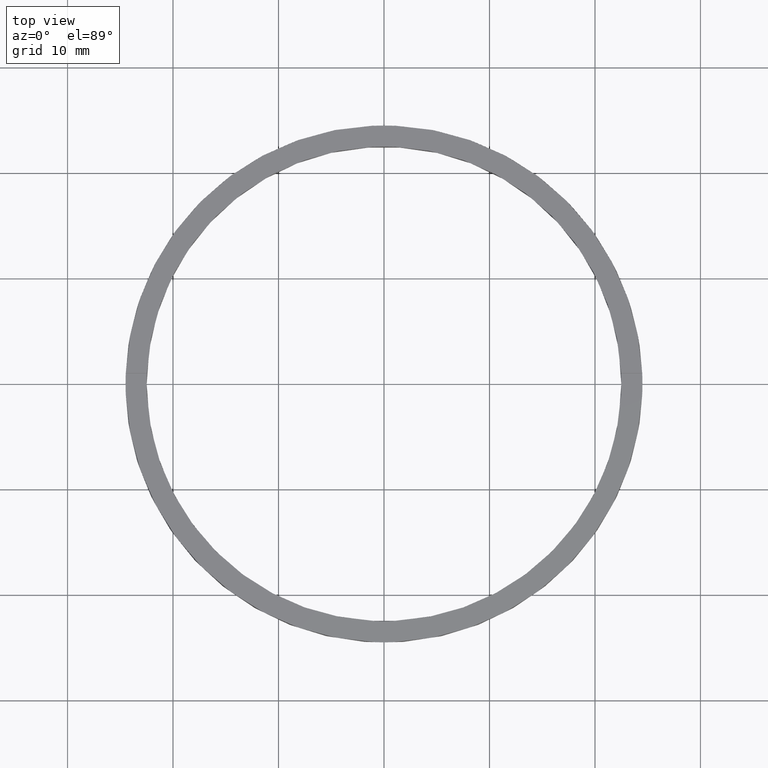
[diagram: clean part render]
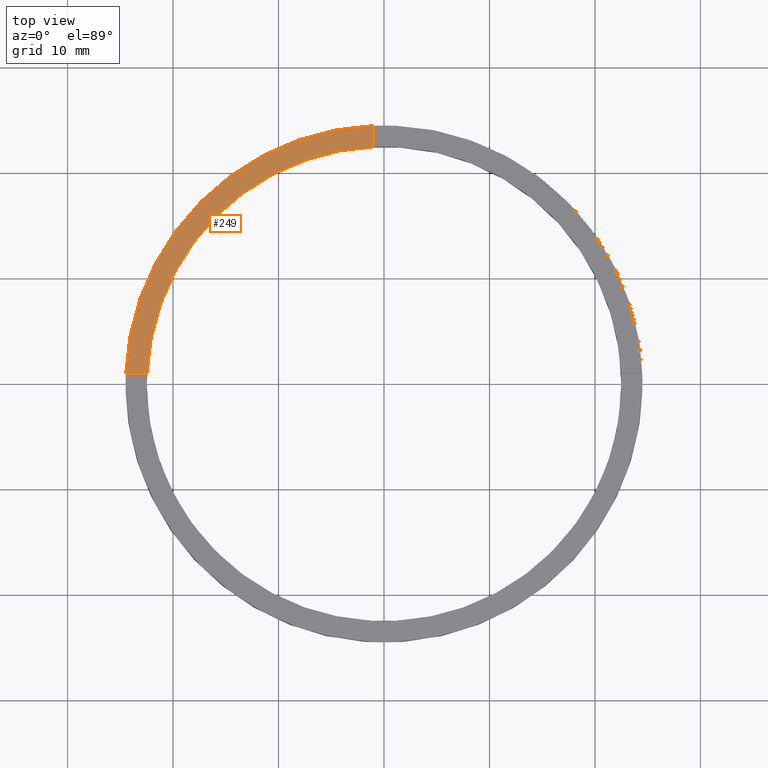
[diagram: same view with one face highlighted and labeled with its STEP entity id]
A machine part, top view. The second image highlights one B-rep face of the part: STEP entity #249.
In plain terms, the highlighted planar face has unit normal (0, 0, 1).
Its self-contained STEP definition (entity closure, byte-faithful):
#1 = ORIENTED_EDGE ( 'NONE', *, *, #342, .F. ) ;
#41 = AXIS2_PLACEMENT_3D ( 'NONE', #48, #325, #628 ) ;
#48 = CARTESIAN_POINT ( 'NONE',  ( 0.000000000000000000, 0.000000000000000000, 2.500000000000000000 ) ) ;
#81 = VERTEX_POINT ( 'NONE', #215 ) ;
#102 = ORIENTED_EDGE ( 'NONE', *, *, #301, .F. ) ;
#111 = CARTESIAN_POINT ( 'NONE',  ( -14.50000000000018652, 0.9999999999999759082, 2.500000000000000000 ) ) ;
#122 = PLANE ( 'NONE',  #266 ) ;
#153 = CIRCLE ( 'NONE', #41, 22.50000000000000355 ) ;
#157 = FACE_OUTER_BOUND ( 'NONE', #709, .T. ) ;
#189 = ORIENTED_EDGE ( 'NONE', *, *, #356, .F. ) ;
#197 = DIRECTION ( 'NONE',  ( -1.000000000000000000, -1.734723475976807341E-16, 0.000000000000000000 ) ) ;
#214 = CARTESIAN_POINT ( 'NONE',  ( 0.000000000000000000, 0.000000000000000000, 2.500000000000000000 ) ) ;
#215 = CARTESIAN_POINT ( 'NONE',  ( -1.000000000000025979, 22.47776679298902636, 2.500000000000000000 ) ) ;
#244 = CARTESIAN_POINT ( 'NONE',  ( -1.000000000000025979, 24.47958332978729601, 2.500000000000000000 ) ) ;
#249 = ADVANCED_FACE ( 'NONE', ( #157 ), #122, .T. ) ;
#252 = CARTESIAN_POINT ( 'NONE',  ( -22.47776679298902636, 0.9999999999999746869, 2.500000000000000000 ) ) ;
#266 = AXIS2_PLACEMENT_3D ( 'NONE', #214, #579, #294 ) ;
#294 = DIRECTION ( 'NONE',  ( 1.000000000000000000, 0.000000000000000000, -0.000000000000000000 ) ) ;
#301 = EDGE_CURVE ( 'NONE', #614, #452, #402, .T. ) ;
#319 = AXIS2_PLACEMENT_3D ( 'NONE', #490, #419, #547 ) ;
#325 = DIRECTION ( 'NONE',  ( 0.000000000000000000, 0.000000000000000000, 1.000000000000000000 ) ) ;
#342 = EDGE_CURVE ( 'NONE', #519, #81, #665, .T. ) ;
#356 = EDGE_CURVE ( 'NONE', #81, #614, #153, .T. ) ;
#387 = VECTOR ( 'NONE', #783, 1000.000000000000000 ) ;
#395 = VECTOR ( 'NONE', #197, 1000.000000000000000 ) ;
#402 = LINE ( 'NONE', #111, #395 ) ;
#404 = CARTESIAN_POINT ( 'NONE',  ( -1.000000000000025979, 14.50000000000000000, 2.500000000000000000 ) ) ;
#419 = DIRECTION ( 'NONE',  ( 0.000000000000000000, 0.000000000000000000, 1.000000000000000000 ) ) ;
#434 = CIRCLE ( 'NONE', #319, 24.50000000000000000 ) ;
#452 = VERTEX_POINT ( 'NONE', #640 ) ;
#490 = CARTESIAN_POINT ( 'NONE',  ( 0.000000000000000000, 0.000000000000000000, 2.500000000000000000 ) ) ;
#519 = VERTEX_POINT ( 'NONE', #244 ) ;
#524 = ORIENTED_EDGE ( 'NONE', *, *, #544, .T. ) ;
#544 = EDGE_CURVE ( 'NONE', #519, #452, #434, .T. ) ;
#547 = DIRECTION ( 'NONE',  ( 1.000000000000000000, 0.000000000000000000, 0.000000000000000000 ) ) ;
#579 = DIRECTION ( 'NONE',  ( 0.000000000000000000, 0.000000000000000000, 1.000000000000000000 ) ) ;
#614 = VERTEX_POINT ( 'NONE', #252 ) ;
#628 = DIRECTION ( 'NONE',  ( 1.000000000000000000, 0.000000000000000000, 0.000000000000000000 ) ) ;
#640 = CARTESIAN_POINT ( 'NONE',  ( -24.47958332978729601, 0.9999999999999742428, 2.500000000000000000 ) ) ;
#665 = LINE ( 'NONE', #404, #387 ) ;
#709 = EDGE_LOOP ( 'NONE', ( #1, #524, #102, #189 ) ) ;
#783 = DIRECTION ( 'NONE',  ( -0.000000000000000000, -1.000000000000000000, -0.000000000000000000 ) ) ;